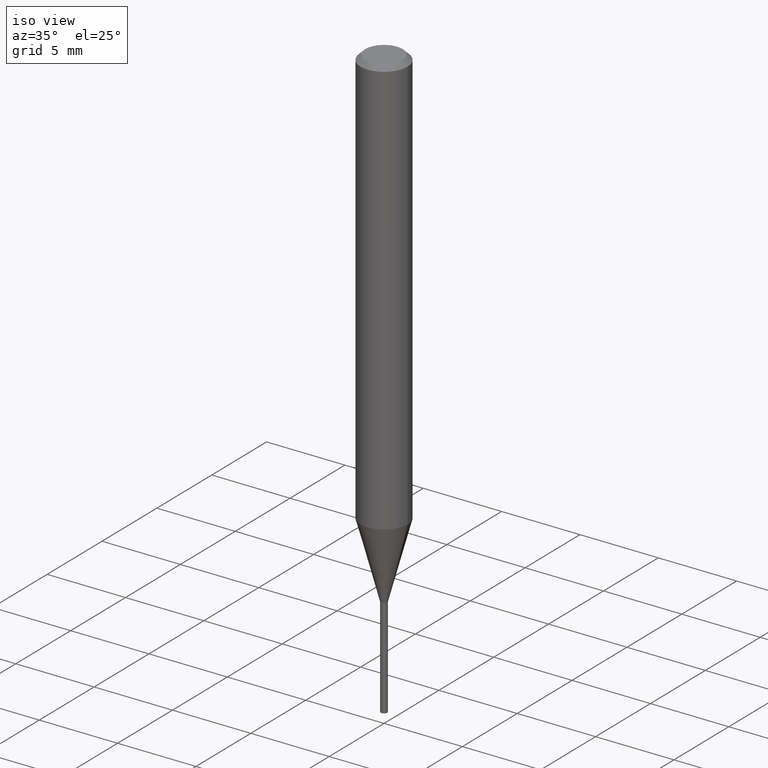
[diagram: clean part render]
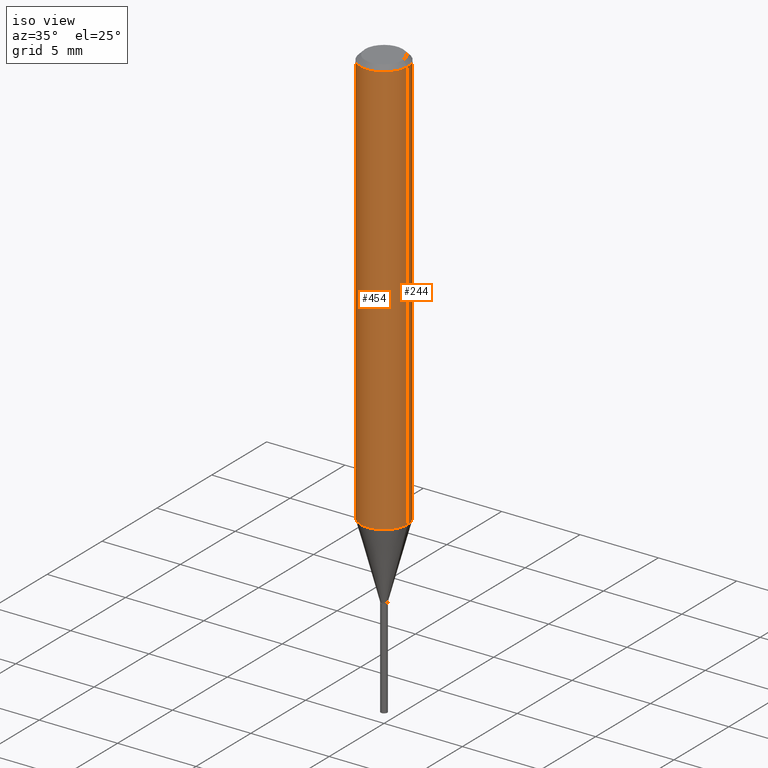
[diagram: same view with one multi-face feature highlighted, each face labeled with its STEP entity id]
A machine part, iso view. The highlighted faces form ONE feature: a constant-radius fillet chain: 2 tangent blend faces with common blend radius 1.4999 mm. The faces share edges in the B-rep.
Their STEP definitions:
[1] entity #454 (Cylinder):
#2 = AXIS2_PLACEMENT_3D ( 'NONE', #402, #371, #288 ) ;
#10 = EDGE_LOOP ( 'NONE', ( #230, #16, #115, #62 ) ) ;
#16 = ORIENTED_EDGE ( 'NONE', *, *, #215, .T. ) ;
#20 = CARTESIAN_POINT ( 'NONE',  ( -0.05905000000000006771, 4.195754854663396409E-16, -2.904631170795525045E-30 ) ) ;
#35 = CARTESIAN_POINT ( 'NONE',  ( 0.05905000000000013016, -4.083166651296605957E-15, -1.051365408813987212 ) ) ;
#49 = VERTEX_POINT ( 'NONE', #124 ) ;
#62 = ORIENTED_EDGE ( 'NONE', *, *, #404, .F. ) ;
#72 = CYLINDRICAL_SURFACE ( 'NONE', #2, 0.05905000000000006771 ) ;
#86 = VERTEX_POINT ( 'NONE', #35 ) ;
#110 = EDGE_CURVE ( 'NONE', #49, #422, #365, .T. ) ;
#115 = ORIENTED_EDGE ( 'NONE', *, *, #235, .T. ) ;
#124 = CARTESIAN_POINT ( 'NONE',  ( -0.05905000000000013016, -3.251247219712891149E-15, -1.051365408813987212 ) ) ;
#125 = CARTESIAN_POINT ( 'NONE',  ( 0.05904999999999999832, -4.535783407291118600E-16, -0.01181000000000007218 ) ) ;
#203 = VECTOR ( 'NONE', #465, 39.37007874015748143 ) ;
#214 = FACE_OUTER_BOUND ( 'NONE', #10, .T. ) ;
#215 = EDGE_CURVE ( 'NONE', #49, #86, #455, .T. ) ;
#230 = ORIENTED_EDGE ( 'NONE', *, *, #110, .F. ) ;
#235 = EDGE_CURVE ( 'NONE', #86, #313, #487, .T. ) ;
#271 = DIRECTION ( 'NONE',  ( 1.000000000000000000, -6.982962677686266711E-15, 0.000000000000000000 ) ) ;
#284 = DIRECTION ( 'NONE',  ( 1.000000000000000000, -6.982962677686265133E-15, 0.000000000000000000 ) ) ;
#288 = DIRECTION ( 'NONE',  ( 1.000000000000000000, -6.982962677686266711E-15, 4.876176775795936353E-29 ) ) ;
#293 = VECTOR ( 'NONE', #412, 39.37007874015748143 ) ;
#313 = VERTEX_POINT ( 'NONE', #125 ) ;
#325 = CARTESIAN_POINT ( 'NONE',  ( 2.571081311156689503E-29, -3.670822705179231037E-15, -1.051365408813987212 ) ) ;
#344 = CARTESIAN_POINT ( 'NONE',  ( -0.05904999999999999832, -1.436453064429143904E-15, -0.01181000000000007218 ) ) ;
#346 = CARTESIAN_POINT ( 'NONE',  ( 2.888098660104664204E-31, -4.123439461173780263E-17, -0.01181000000000007218 ) ) ;
#365 = LINE ( 'NONE', #20, #203 ) ;
#371 = DIRECTION ( 'NONE',  ( -2.445468806185136597E-29, 3.491481338843145583E-15, 1.000000000000000000 ) ) ;
#390 = DIRECTION ( 'NONE',  ( -2.445468806185136597E-29, 3.491481338843145583E-15, 1.000000000000000000 ) ) ;
#402 = CARTESIAN_POINT ( 'NONE',  ( 0.000000000000000000, 0.000000000000000000, 0.000000000000000000 ) ) ;
#404 = EDGE_CURVE ( 'NONE', #422, #313, #443, .T. ) ;
#406 = CARTESIAN_POINT ( 'NONE',  ( 0.05905000000000006771, -4.123439461173745257E-16, 2.879382386107503723E-30 ) ) ;
#412 = DIRECTION ( 'NONE',  ( -2.445468806185136877E-29, 3.491481338843145188E-15, 1.000000000000000000 ) ) ;
#414 = AXIS2_PLACEMENT_3D ( 'NONE', #346, #390, #271 ) ;
#422 = VERTEX_POINT ( 'NONE', #344 ) ;
#443 = CIRCLE ( 'NONE', #414, 0.05904999999999999832 ) ;
#454 = ADVANCED_FACE ( 'NONE', ( #214 ), #72, .T. ) ;
#455 = CIRCLE ( 'NONE', #474, 0.05905000000000013016 ) ;
#465 = DIRECTION ( 'NONE',  ( -2.445468806185136877E-29, 3.491481338843145188E-15, 1.000000000000000000 ) ) ;
#471 = DIRECTION ( 'NONE',  ( -2.445468806185136597E-29, 3.491481338843145583E-15, 1.000000000000000000 ) ) ;
#474 = AXIS2_PLACEMENT_3D ( 'NONE', #325, #471, #284 ) ;
#487 = LINE ( 'NONE', #406, #293 ) ;
[2] entity #244 (Cylinder):
#20 = CARTESIAN_POINT ( 'NONE',  ( -0.05905000000000006771, 4.195754854663396409E-16, -2.904631170795525045E-30 ) ) ;
#29 = AXIS2_PLACEMENT_3D ( 'NONE', #307, #64, #231 ) ;
#35 = CARTESIAN_POINT ( 'NONE',  ( 0.05905000000000013016, -4.083166651296605957E-15, -1.051365408813987212 ) ) ;
#41 = CIRCLE ( 'NONE', #29, 0.05905000000000013016 ) ;
#49 = VERTEX_POINT ( 'NONE', #124 ) ;
#64 = DIRECTION ( 'NONE',  ( -2.445468806185136597E-29, 3.491481338843145583E-15, 1.000000000000000000 ) ) ;
#70 = FACE_OUTER_BOUND ( 'NONE', #342, .T. ) ;
#86 = VERTEX_POINT ( 'NONE', #35 ) ;
#110 = EDGE_CURVE ( 'NONE', #49, #422, #365, .T. ) ;
#122 = AXIS2_PLACEMENT_3D ( 'NONE', #210, #180, #331 ) ;
#124 = CARTESIAN_POINT ( 'NONE',  ( -0.05905000000000013016, -3.251247219712891149E-15, -1.051365408813987212 ) ) ;
#125 = CARTESIAN_POINT ( 'NONE',  ( 0.05904999999999999832, -4.535783407291118600E-16, -0.01181000000000007218 ) ) ;
#139 = AXIS2_PLACEMENT_3D ( 'NONE', #323, #283, #209 ) ;
#149 = ORIENTED_EDGE ( 'NONE', *, *, #235, .F. ) ;
#180 = DIRECTION ( 'NONE',  ( -2.445468806185136597E-29, 3.491481338843145583E-15, 1.000000000000000000 ) ) ;
#203 = VECTOR ( 'NONE', #465, 39.37007874015748143 ) ;
#209 = DIRECTION ( 'NONE',  ( 1.000000000000000000, -6.982962677686266711E-15, 0.000000000000000000 ) ) ;
#210 = CARTESIAN_POINT ( 'NONE',  ( 0.000000000000000000, 0.000000000000000000, 0.000000000000000000 ) ) ;
#227 = CIRCLE ( 'NONE', #139, 0.05904999999999999832 ) ;
#231 = DIRECTION ( 'NONE',  ( 1.000000000000000000, -6.982962677686265133E-15, 0.000000000000000000 ) ) ;
#235 = EDGE_CURVE ( 'NONE', #86, #313, #487, .T. ) ;
#244 = ADVANCED_FACE ( 'NONE', ( #70 ), #489, .T. ) ;
#273 = EDGE_CURVE ( 'NONE', #86, #49, #41, .T. ) ;
#283 = DIRECTION ( 'NONE',  ( -2.445468806185136597E-29, 3.491481338843145583E-15, 1.000000000000000000 ) ) ;
#291 = ORIENTED_EDGE ( 'NONE', *, *, #110, .T. ) ;
#293 = VECTOR ( 'NONE', #412, 39.37007874015748143 ) ;
#307 = CARTESIAN_POINT ( 'NONE',  ( 2.571081311156689503E-29, -3.670822705179231037E-15, -1.051365408813987212 ) ) ;
#313 = VERTEX_POINT ( 'NONE', #125 ) ;
#323 = CARTESIAN_POINT ( 'NONE',  ( 2.888098660104664204E-31, -4.123439461173780263E-17, -0.01181000000000007218 ) ) ;
#331 = DIRECTION ( 'NONE',  ( 1.000000000000000000, -6.982962677686266711E-15, 4.876176775795936353E-29 ) ) ;
#342 = EDGE_LOOP ( 'NONE', ( #490, #291, #453, #149 ) ) ;
#344 = CARTESIAN_POINT ( 'NONE',  ( -0.05904999999999999832, -1.436453064429143904E-15, -0.01181000000000007218 ) ) ;
#365 = LINE ( 'NONE', #20, #203 ) ;
#366 = EDGE_CURVE ( 'NONE', #313, #422, #227, .T. ) ;
#406 = CARTESIAN_POINT ( 'NONE',  ( 0.05905000000000006771, -4.123439461173745257E-16, 2.879382386107503723E-30 ) ) ;
#412 = DIRECTION ( 'NONE',  ( -2.445468806185136877E-29, 3.491481338843145188E-15, 1.000000000000000000 ) ) ;
#422 = VERTEX_POINT ( 'NONE', #344 ) ;
#453 = ORIENTED_EDGE ( 'NONE', *, *, #366, .F. ) ;
#465 = DIRECTION ( 'NONE',  ( -2.445468806185136877E-29, 3.491481338843145188E-15, 1.000000000000000000 ) ) ;
#487 = LINE ( 'NONE', #406, #293 ) ;
#489 = CYLINDRICAL_SURFACE ( 'NONE', #122, 0.05905000000000006771 ) ;
#490 = ORIENTED_EDGE ( 'NONE', *, *, #273, .T. ) ;